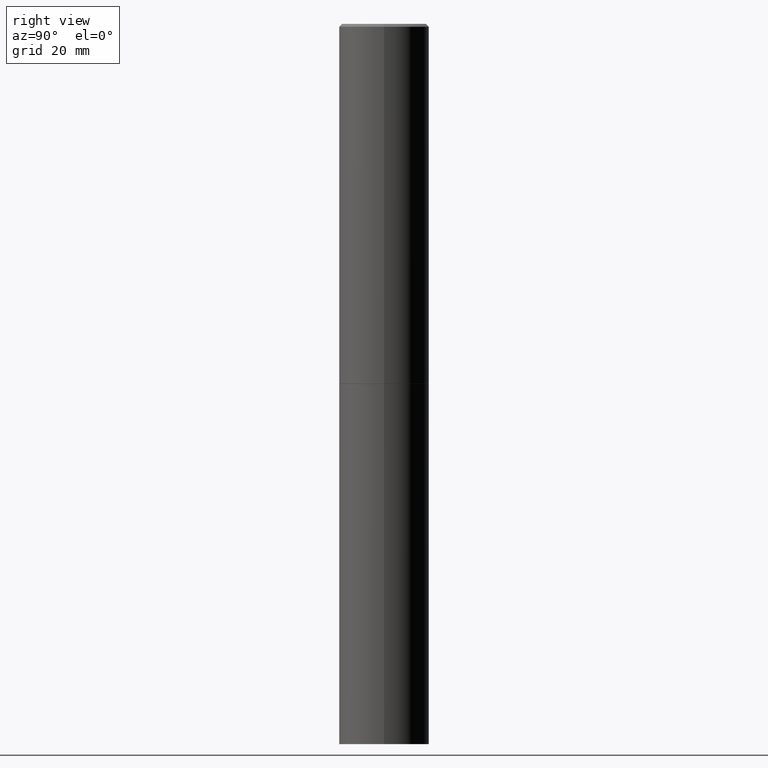
[diagram: clean part render]
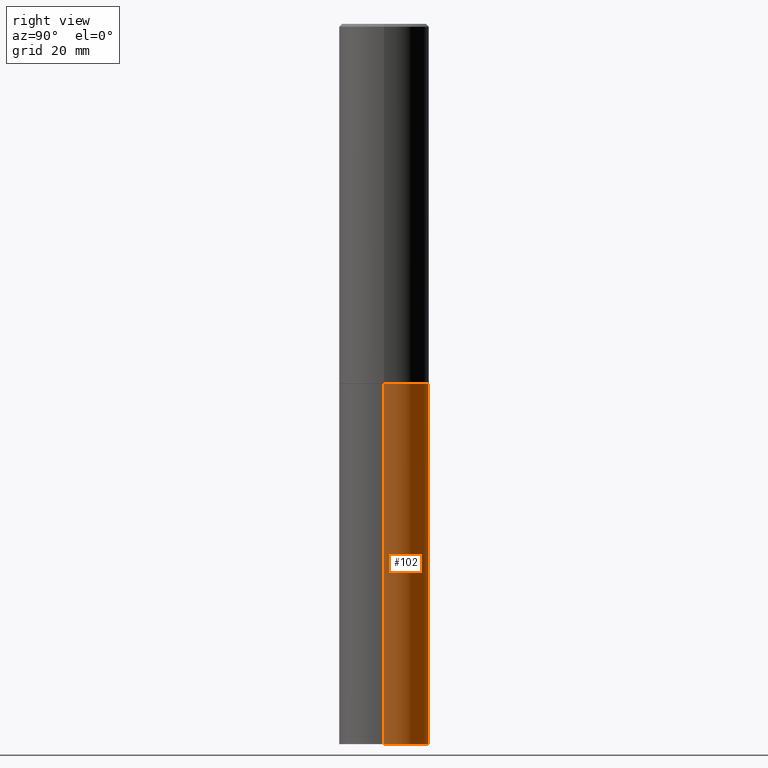
[diagram: same view with one face highlighted and labeled with its STEP entity id]
A machine part, right view. The second image highlights one B-rep face of the part: STEP entity #102.
In plain terms, the highlighted cylindrical surface (partial cylindrical patch) has radius 7.9375 mm, axis along (-0, 0, 1).
Its self-contained STEP definition (entity closure, byte-faithful):
#40 = CARTESIAN_POINT ( 'NONE',  ( 0.000000000000000000, 0.000000000000000000, 0.000000000000000000 ) ) ;
#53 = CARTESIAN_POINT ( 'NONE',  ( 0.3125000000000000000, -1.091087918388482329E-14, -2.500000000000000000 ) ) ;
#65 = EDGE_CURVE ( 'NONE', #164, #214, #179, .T. ) ;
#75 = DIRECTION ( 'NONE',  ( -2.445468806185136877E-29, 3.491481338843145188E-15, 1.000000000000000000 ) ) ;
#82 = AXIS2_PLACEMENT_3D ( 'NONE', #153, #252, #298 ) ;
#94 = CIRCLE ( 'NONE', #96, 0.3125000000000000000 ) ;
#95 = CARTESIAN_POINT ( 'NONE',  ( 0.3125000000000000000, -1.963958253099268981E-14, -5.000000000000000000 ) ) ;
#96 = AXIS2_PLACEMENT_3D ( 'NONE', #136, #229, #256 ) ;
#102 = ADVANCED_FACE ( 'NONE', ( #181 ), #348, .T. ) ;
#124 = DIRECTION ( 'NONE',  ( -2.445468806185136597E-29, 3.491481338843145583E-15, 1.000000000000000000 ) ) ;
#132 = VERTEX_POINT ( 'NONE', #149 ) ;
#136 = CARTESIAN_POINT ( 'NONE',  ( 1.222734403092568523E-28, -1.745740669421572989E-14, -5.000000000000000000 ) ) ;
#147 = DIRECTION ( 'NONE',  ( -2.445468806185136877E-29, 3.491481338843145188E-15, 1.000000000000000000 ) ) ;
#149 = CARTESIAN_POINT ( 'NONE',  ( -0.3125000000000000000, -1.087260897141148433E-14, -5.000000000000000000 ) ) ;
#153 = CARTESIAN_POINT ( 'NONE',  ( 6.113672015462842613E-29, -8.728703347107864943E-15, -2.500000000000000000 ) ) ;
#164 = VERTEX_POINT ( 'NONE', #95 ) ;
#167 = CIRCLE ( 'NONE', #82, 0.3125000000000000000 ) ;
#177 = EDGE_CURVE ( 'NONE', #214, #217, #167, .T. ) ;
#179 = LINE ( 'NONE', #291, #237 ) ;
#181 = FACE_OUTER_BOUND ( 'NONE', #241, .T. ) ;
#185 = ORIENTED_EDGE ( 'NONE', *, *, #177, .F. ) ;
#201 = AXIS2_PLACEMENT_3D ( 'NONE', #40, #124, #219 ) ;
#214 = VERTEX_POINT ( 'NONE', #53 ) ;
#217 = VERTEX_POINT ( 'NONE', #362 ) ;
#219 = DIRECTION ( 'NONE',  ( 1.000000000000000000, -6.982962677686266711E-15, 4.876176775795936353E-29 ) ) ;
#229 = DIRECTION ( 'NONE',  ( -2.445468806185136597E-29, 3.491481338843145583E-15, 1.000000000000000000 ) ) ;
#237 = VECTOR ( 'NONE', #147, 39.37007874015748143 ) ;
#241 = EDGE_LOOP ( 'NONE', ( #264, #304, #185, #302 ) ) ;
#252 = DIRECTION ( 'NONE',  ( -2.445468806185136597E-29, 3.491481338843145583E-15, 1.000000000000000000 ) ) ;
#256 = DIRECTION ( 'NONE',  ( 1.000000000000000000, -6.982962677686269077E-15, 0.000000000000000000 ) ) ;
#264 = ORIENTED_EDGE ( 'NONE', *, *, #283, .T. ) ;
#273 = CARTESIAN_POINT ( 'NONE',  ( -0.3125000000000000000, 2.220446049250313081E-15, -1.537167215704658232E-29 ) ) ;
#283 = EDGE_CURVE ( 'NONE', #164, #132, #94, .T. ) ;
#291 = CARTESIAN_POINT ( 'NONE',  ( 0.3125000000000000000, -2.182175836776958347E-15, 1.523805242436230075E-29 ) ) ;
#298 = DIRECTION ( 'NONE',  ( 1.000000000000000000, -6.982962677686265133E-15, 0.000000000000000000 ) ) ;
#302 = ORIENTED_EDGE ( 'NONE', *, *, #65, .F. ) ;
#304 = ORIENTED_EDGE ( 'NONE', *, *, #314, .T. ) ;
#314 = EDGE_CURVE ( 'NONE', #132, #217, #329, .T. ) ;
#318 = VECTOR ( 'NONE', #75, 39.37007874015748143 ) ;
#329 = LINE ( 'NONE', #273, #318 ) ;
#348 = CYLINDRICAL_SURFACE ( 'NONE', #201, 0.3125000000000000000 ) ;
#362 = CARTESIAN_POINT ( 'NONE',  ( -0.3125000000000000000, -1.087260897141148433E-14, -2.500000000000000000 ) ) ;